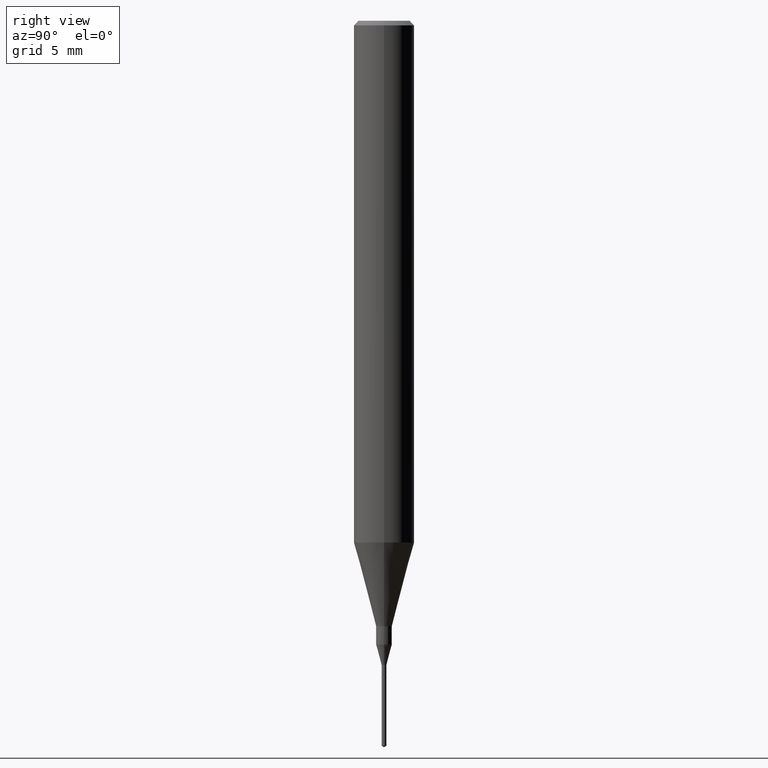
[diagram: clean part render]
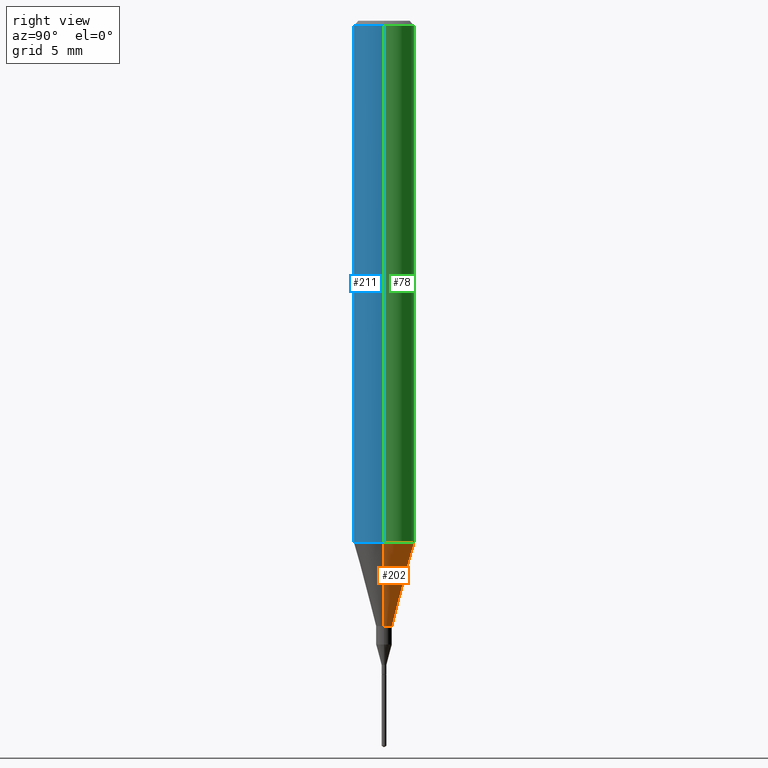
[diagram: same view with three faces highlighted in distinct colors, each labeled with its STEP entity id]
A machine part, right view with three faces highlighted in distinct colors.
Their STEP definitions:

[orange] entity #202 — the highlighted conical surface has half-angle 15 deg.
#12 = CARTESIAN_POINT ( 'NONE',  ( 0.06250000000000012490, -4.198131499960668153E-15, -1.077392650149939346 ) ) ;
#16 = CARTESIAN_POINT ( 'NONE',  ( -0.01624999999999999709, -4.315251812701535156E-15, -1.250000000000000000 ) ) ;
#18 = CARTESIAN_POINT ( 'NONE',  ( 2.634730117954813298E-29, -3.761696332605275695E-15, -1.077392650149939346 ) ) ;
#19 = CONICAL_SURFACE ( 'NONE', #72, 0.06250000000000012490, 0.2617993877991501295 ) ;
#52 = CIRCLE ( 'NONE', #366, 0.06250000000000012490 ) ;
#72 = AXIS2_PLACEMENT_3D ( 'NONE', #153, #340, #385 ) ;
#79 = CARTESIAN_POINT ( 'NONE',  ( 0.01624999999999999709, -4.477824817066334148E-15, -1.250000000000000000 ) ) ;
#94 = VERTEX_POINT ( 'NONE', #197 ) ;
#104 = CARTESIAN_POINT ( 'NONE',  ( 3.056836007731421306E-29, -4.364351673553932471E-15, -1.250000000000000000 ) ) ;
#110 = DIRECTION ( 'NONE',  ( -2.445468806185136597E-29, 3.491481338843145583E-15, 1.000000000000000000 ) ) ;
#114 = LINE ( 'NONE', #12, #287 ) ;
#120 = DIRECTION ( 'NONE',  ( 1.000000000000000000, -6.982962677686288799E-15, 0.000000000000000000 ) ) ;
#153 = CARTESIAN_POINT ( 'NONE',  ( 2.634730117954813298E-29, -3.761696332605275695E-15, -1.077392650149939346 ) ) ;
#173 = ORIENTED_EDGE ( 'NONE', *, *, #400, .T. ) ;
#182 = VERTEX_POINT ( 'NONE', #16 ) ;
#197 = CARTESIAN_POINT ( 'NONE',  ( 0.06250000000000012490, -4.198131499960668153E-15, -1.077392650149939346 ) ) ;
#202 = ADVANCED_FACE ( 'NONE', ( #378 ), #19, .T. ) ;
#208 = LINE ( 'NONE', #524, #388 ) ;
#265 = VERTEX_POINT ( 'NONE', #293 ) ;
#286 = AXIS2_PLACEMENT_3D ( 'NONE', #104, #530, #120 ) ;
#287 = VECTOR ( 'NONE', #569, 39.37007874015747433 ) ;
#293 = CARTESIAN_POINT ( 'NONE',  ( -0.06250000000000012490, -3.317607122755211895E-15, -1.077392650149939346 ) ) ;
#321 = ORIENTED_EDGE ( 'NONE', *, *, #490, .T. ) ;
#329 = ORIENTED_EDGE ( 'NONE', *, *, #483, .F. ) ;
#340 = DIRECTION ( 'NONE',  ( -2.445468806185136597E-29, 3.491481338843145583E-15, 1.000000000000000000 ) ) ;
#366 = AXIS2_PLACEMENT_3D ( 'NONE', #18, #110, #441 ) ;
#377 = EDGE_LOOP ( 'NONE', ( #173, #321, #547, #329 ) ) ;
#378 = FACE_OUTER_BOUND ( 'NONE', #377, .T. ) ;
#385 = DIRECTION ( 'NONE',  ( 1.000000000000000000, -6.982962677686264344E-15, 0.000000000000000000 ) ) ;
#388 = VECTOR ( 'NONE', #520, 39.37007874015747433 ) ;
#400 = EDGE_CURVE ( 'NONE', #548, #182, #425, .T. ) ;
#423 = EDGE_CURVE ( 'NONE', #94, #265, #52, .T. ) ;
#425 = CIRCLE ( 'NONE', #286, 0.01624999999999999709 ) ;
#441 = DIRECTION ( 'NONE',  ( 1.000000000000000000, -6.982962677686264344E-15, 0.000000000000000000 ) ) ;
#483 = EDGE_CURVE ( 'NONE', #548, #94, #114, .T. ) ;
#490 = EDGE_CURVE ( 'NONE', #182, #265, #208, .T. ) ;
#520 = DIRECTION ( 'NONE',  ( -0.2588190451025214611, 5.211531920934551042E-15, 0.9659258262890682012 ) ) ;
#524 = CARTESIAN_POINT ( 'NONE',  ( -0.06250000000000012490, -3.317607122755211895E-15, -1.077392650149939346 ) ) ;
#530 = DIRECTION ( 'NONE',  ( -2.445468806185136597E-29, 3.491481338843145583E-15, 1.000000000000000000 ) ) ;
#547 = ORIENTED_EDGE ( 'NONE', *, *, #423, .F. ) ;
#548 = VERTEX_POINT ( 'NONE', #79 ) ;
#569 = DIRECTION ( 'NONE',  ( 0.2588190451025214611, 1.565188264969621573E-15, 0.9659258262890682012 ) ) ;

[blue] entity #211 — the highlighted cylindrical surface (edge-blend (fillet) strip) has radius 1.5875 mm, axis along (-0, 0, 1).
#11 = FACE_OUTER_BOUND ( 'NONE', #311, .T. ) ;
#14 = DIRECTION ( 'NONE',  ( -2.445468806185136877E-29, 3.491481338843145188E-15, 1.000000000000000000 ) ) ;
#48 = EDGE_CURVE ( 'NONE', #462, #583, #405, .T. ) ;
#55 = DIRECTION ( 'NONE',  ( -2.445468806185136597E-29, 3.491481338843145583E-15, 1.000000000000000000 ) ) ;
#89 = AXIS2_PLACEMENT_3D ( 'NONE', #333, #55, #288 ) ;
#94 = VERTEX_POINT ( 'NONE', #197 ) ;
#99 = CARTESIAN_POINT ( 'NONE',  ( -0.06250000000000006939, 4.440892098500631092E-16, -3.074334431409319267E-30 ) ) ;
#100 = CARTESIAN_POINT ( 'NONE',  ( 0.000000000000000000, 0.000000000000000000, 0.000000000000000000 ) ) ;
#124 = VECTOR ( 'NONE', #334, 39.37007874015748143 ) ;
#163 = VECTOR ( 'NONE', #14, 39.37007874015748143 ) ;
#191 = ORIENTED_EDGE ( 'NONE', *, *, #523, .F. ) ;
#196 = DIRECTION ( 'NONE',  ( 1.000000000000000000, -6.982962677686266711E-15, 4.876176775795935793E-29 ) ) ;
#197 = CARTESIAN_POINT ( 'NONE',  ( 0.06250000000000012490, -4.198131499960668153E-15, -1.077392650149939346 ) ) ;
#201 = CARTESIAN_POINT ( 'NONE',  ( 2.634730117954813298E-29, -3.761696332605275695E-15, -1.077392650149939346 ) ) ;
#211 = ADVANCED_FACE ( 'NONE', ( #11 ), #253, .T. ) ;
#219 = EDGE_CURVE ( 'NONE', #94, #583, #391, .T. ) ;
#220 = EDGE_CURVE ( 'NONE', #265, #94, #574, .T. ) ;
#224 = AXIS2_PLACEMENT_3D ( 'NONE', #201, #256, #351 ) ;
#253 = CYLINDRICAL_SURFACE ( 'NONE', #396, 0.06250000000000006939 ) ;
#256 = DIRECTION ( 'NONE',  ( -2.445468806185136597E-29, 3.491481338843145583E-15, 1.000000000000000000 ) ) ;
#265 = VERTEX_POINT ( 'NONE', #293 ) ;
#282 = ORIENTED_EDGE ( 'NONE', *, *, #219, .T. ) ;
#288 = DIRECTION ( 'NONE',  ( 1.000000000000000000, -6.982962677686266711E-15, 0.000000000000000000 ) ) ;
#293 = CARTESIAN_POINT ( 'NONE',  ( -0.06250000000000012490, -3.317607122755211895E-15, -1.077392650149939346 ) ) ;
#311 = EDGE_LOOP ( 'NONE', ( #191, #365, #282, #404 ) ) ;
#333 = CARTESIAN_POINT ( 'NONE',  ( 2.292627005798581937E-31, -3.273263755165472033E-17, -0.009375000000000067307 ) ) ;
#334 = DIRECTION ( 'NONE',  ( -2.445468806185136877E-29, 3.491481338843145188E-15, 1.000000000000000000 ) ) ;
#348 = LINE ( 'NONE', #99, #124 ) ;
#351 = DIRECTION ( 'NONE',  ( 1.000000000000000000, -6.982962677686264344E-15, 0.000000000000000000 ) ) ;
#365 = ORIENTED_EDGE ( 'NONE', *, *, #220, .T. ) ;
#391 = LINE ( 'NONE', #436, #163 ) ;
#395 = CARTESIAN_POINT ( 'NONE',  ( -0.06250000000000000000, -1.453125275228401137E-15, -0.009375000000000067307 ) ) ;
#396 = AXIS2_PLACEMENT_3D ( 'NONE', #100, #471, #196 ) ;
#404 = ORIENTED_EDGE ( 'NONE', *, *, #48, .F. ) ;
#405 = CIRCLE ( 'NONE', #89, 0.06250000000000000000 ) ;
#436 = CARTESIAN_POINT ( 'NONE',  ( 0.06250000000000006939, -4.364351673553921624E-16, 3.047610484872463374E-30 ) ) ;
#462 = VERTEX_POINT ( 'NONE', #395 ) ;
#471 = DIRECTION ( 'NONE',  ( -2.445468806185136597E-29, 3.491481338843145583E-15, 1.000000000000000000 ) ) ;
#523 = EDGE_CURVE ( 'NONE', #265, #462, #348, .T. ) ;
#574 = CIRCLE ( 'NONE', #224, 0.06250000000000012490 ) ;
#575 = CARTESIAN_POINT ( 'NONE',  ( 0.06250000000000000000, -4.691678049070464390E-16, -0.009375000000000067307 ) ) ;
#583 = VERTEX_POINT ( 'NONE', #575 ) ;

[green] entity #78 — the highlighted cylindrical surface (edge-blend (fillet) strip) has radius 1.5875 mm, axis along (-0, 0, 1).
#4 = AXIS2_PLACEMENT_3D ( 'NONE', #442, #258, #283 ) ;
#14 = DIRECTION ( 'NONE',  ( -2.445468806185136877E-29, 3.491481338843145188E-15, 1.000000000000000000 ) ) ;
#18 = CARTESIAN_POINT ( 'NONE',  ( 2.634730117954813298E-29, -3.761696332605275695E-15, -1.077392650149939346 ) ) ;
#26 = EDGE_CURVE ( 'NONE', #583, #462, #249, .T. ) ;
#52 = CIRCLE ( 'NONE', #366, 0.06250000000000012490 ) ;
#61 = AXIS2_PLACEMENT_3D ( 'NONE', #97, #229, #412 ) ;
#78 = ADVANCED_FACE ( 'NONE', ( #214 ), #572, .T. ) ;
#90 = ORIENTED_EDGE ( 'NONE', *, *, #423, .T. ) ;
#94 = VERTEX_POINT ( 'NONE', #197 ) ;
#97 = CARTESIAN_POINT ( 'NONE',  ( 2.292627005798581937E-31, -3.273263755165472033E-17, -0.009375000000000067307 ) ) ;
#99 = CARTESIAN_POINT ( 'NONE',  ( -0.06250000000000006939, 4.440892098500631092E-16, -3.074334431409319267E-30 ) ) ;
#110 = DIRECTION ( 'NONE',  ( -2.445468806185136597E-29, 3.491481338843145583E-15, 1.000000000000000000 ) ) ;
#124 = VECTOR ( 'NONE', #334, 39.37007874015748143 ) ;
#150 = ORIENTED_EDGE ( 'NONE', *, *, #219, .F. ) ;
#163 = VECTOR ( 'NONE', #14, 39.37007874015748143 ) ;
#197 = CARTESIAN_POINT ( 'NONE',  ( 0.06250000000000012490, -4.198131499960668153E-15, -1.077392650149939346 ) ) ;
#214 = FACE_OUTER_BOUND ( 'NONE', #269, .T. ) ;
#219 = EDGE_CURVE ( 'NONE', #94, #583, #391, .T. ) ;
#229 = DIRECTION ( 'NONE',  ( -2.445468806185136597E-29, 3.491481338843145583E-15, 1.000000000000000000 ) ) ;
#249 = CIRCLE ( 'NONE', #61, 0.06250000000000000000 ) ;
#258 = DIRECTION ( 'NONE',  ( -2.445468806185136597E-29, 3.491481338843145583E-15, 1.000000000000000000 ) ) ;
#265 = VERTEX_POINT ( 'NONE', #293 ) ;
#269 = EDGE_LOOP ( 'NONE', ( #90, #354, #332, #150 ) ) ;
#283 = DIRECTION ( 'NONE',  ( 1.000000000000000000, -6.982962677686266711E-15, 4.876176775795935793E-29 ) ) ;
#293 = CARTESIAN_POINT ( 'NONE',  ( -0.06250000000000012490, -3.317607122755211895E-15, -1.077392650149939346 ) ) ;
#332 = ORIENTED_EDGE ( 'NONE', *, *, #26, .F. ) ;
#334 = DIRECTION ( 'NONE',  ( -2.445468806185136877E-29, 3.491481338843145188E-15, 1.000000000000000000 ) ) ;
#348 = LINE ( 'NONE', #99, #124 ) ;
#354 = ORIENTED_EDGE ( 'NONE', *, *, #523, .T. ) ;
#366 = AXIS2_PLACEMENT_3D ( 'NONE', #18, #110, #441 ) ;
#391 = LINE ( 'NONE', #436, #163 ) ;
#395 = CARTESIAN_POINT ( 'NONE',  ( -0.06250000000000000000, -1.453125275228401137E-15, -0.009375000000000067307 ) ) ;
#412 = DIRECTION ( 'NONE',  ( 1.000000000000000000, -6.982962677686266711E-15, 0.000000000000000000 ) ) ;
#423 = EDGE_CURVE ( 'NONE', #94, #265, #52, .T. ) ;
#436 = CARTESIAN_POINT ( 'NONE',  ( 0.06250000000000006939, -4.364351673553921624E-16, 3.047610484872463374E-30 ) ) ;
#441 = DIRECTION ( 'NONE',  ( 1.000000000000000000, -6.982962677686264344E-15, 0.000000000000000000 ) ) ;
#442 = CARTESIAN_POINT ( 'NONE',  ( 0.000000000000000000, 0.000000000000000000, 0.000000000000000000 ) ) ;
#462 = VERTEX_POINT ( 'NONE', #395 ) ;
#523 = EDGE_CURVE ( 'NONE', #265, #462, #348, .T. ) ;
#572 = CYLINDRICAL_SURFACE ( 'NONE', #4, 0.06250000000000006939 ) ;
#575 = CARTESIAN_POINT ( 'NONE',  ( 0.06250000000000000000, -4.691678049070464390E-16, -0.009375000000000067307 ) ) ;
#583 = VERTEX_POINT ( 'NONE', #575 ) ;